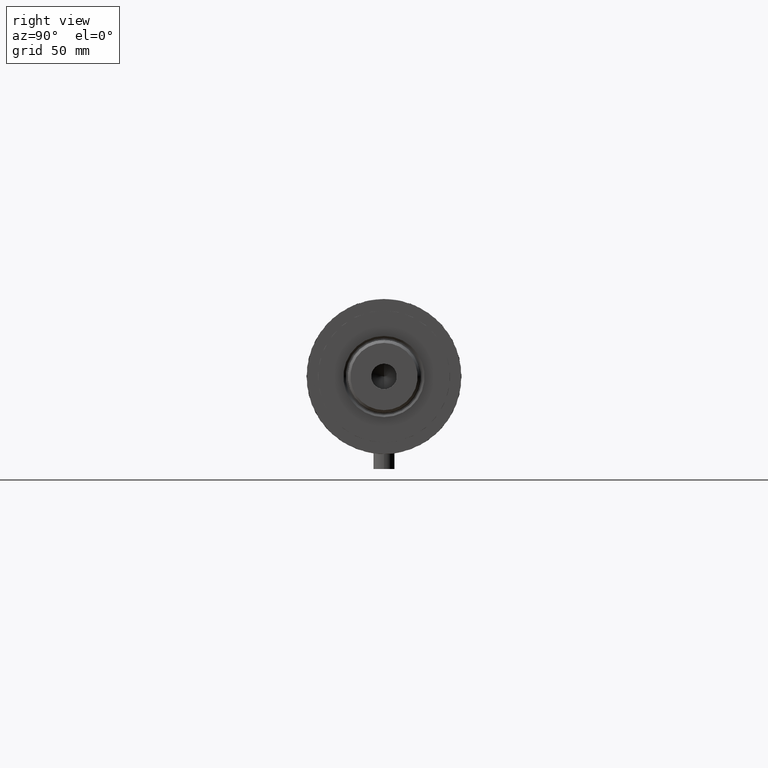
[diagram: clean part render]
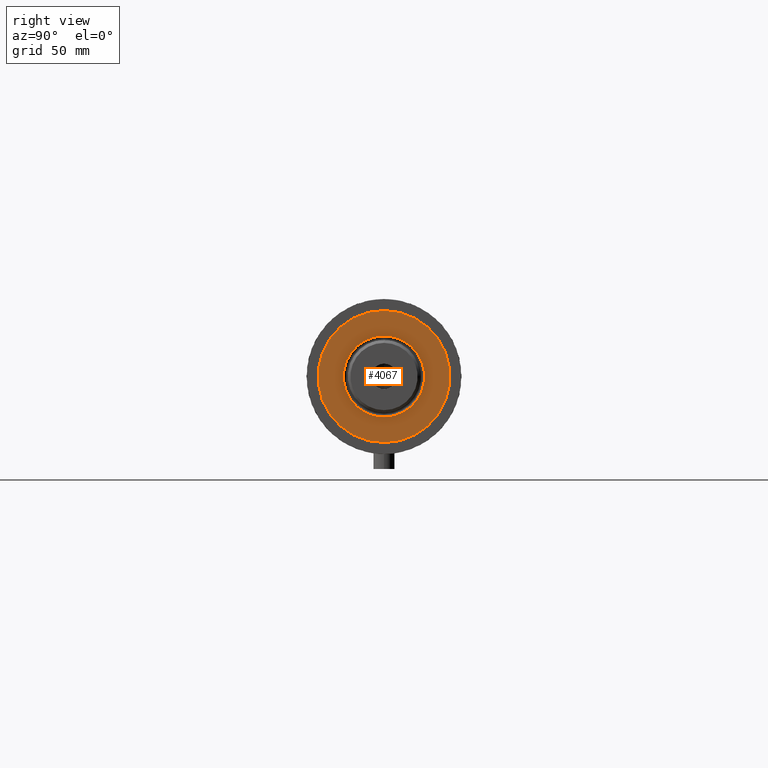
[diagram: same view with one face highlighted and labeled with its STEP entity id]
A machine part, right view. The second image highlights one B-rep face of the part: STEP entity #4067.
In plain terms, the highlighted planar face has unit normal (1, 0, -0).
Its self-contained STEP definition (entity closure, byte-faithful):
#94 = EDGE_CURVE ( 'NONE', #1922, #1827, #325, .T. ) ;
#254 = DIRECTION ( 'NONE',  ( 1.000000000000000000, 0.000000000000000000, 0.000000000000000000 ) ) ;
#325 = CIRCLE ( 'NONE', #697, 23.05000000000002913 ) ;
#491 = ORIENTED_EDGE ( 'NONE', *, *, #3106, .T. ) ;
#554 = DIRECTION ( 'NONE',  ( 0.000000000000000000, 0.000000000000000000, 1.000000000000000000 ) ) ;
#568 = DIRECTION ( 'NONE',  ( 1.000000000000000000, 0.000000000000000000, 0.000000000000000000 ) ) ;
#612 = DIRECTION ( 'NONE',  ( -0.000000000000000000, -0.000000000000000000, -1.000000000000000000 ) ) ;
#613 = CARTESIAN_POINT ( 'NONE',  ( 23.05000000000002913, 0.000000000000000000, 59.89999999999999147 ) ) ;
#697 = AXIS2_PLACEMENT_3D ( 'NONE', #1424, #3163, #3546 ) ;
#1281 = CARTESIAN_POINT ( 'NONE',  ( 0.000000000000000000, 0.000000000000000000, 59.89999999999999147 ) ) ;
#1301 = PLANE ( 'NONE',  #2478 ) ;
#1424 = CARTESIAN_POINT ( 'NONE',  ( 0.000000000000000000, 0.000000000000000000, 59.89999999999999147 ) ) ;
#1565 = CIRCLE ( 'NONE', #2481, 23.05000000000002913 ) ;
#1597 = EDGE_CURVE ( 'NONE', #2295, #3555, #3142, .T. ) ;
#1652 = CARTESIAN_POINT ( 'NONE',  ( 0.000000000000000000, 0.000000000000000000, 59.89999999999999147 ) ) ;
#1770 = AXIS2_PLACEMENT_3D ( 'NONE', #4326, #2579, #3977 ) ;
#1827 = VERTEX_POINT ( 'NONE', #4440 ) ;
#1922 = VERTEX_POINT ( 'NONE', #613 ) ;
#2009 = FACE_BOUND ( 'NONE', #3963, .T. ) ;
#2295 = VERTEX_POINT ( 'NONE', #4105 ) ;
#2305 = CARTESIAN_POINT ( 'NONE',  ( 37.50000000000000711, 4.592425496802575156E-15, 59.89999999999999147 ) ) ;
#2478 = AXIS2_PLACEMENT_3D ( 'NONE', #1281, #554, #4056 ) ;
#2481 = AXIS2_PLACEMENT_3D ( 'NONE', #3727, #612, #568 ) ;
#2559 = CIRCLE ( 'NONE', #1770, 37.50000000000000711 ) ;
#2579 = DIRECTION ( 'NONE',  ( 0.000000000000000000, 0.000000000000000000, 1.000000000000000000 ) ) ;
#2655 = FACE_OUTER_BOUND ( 'NONE', #4075, .T. ) ;
#2657 = ORIENTED_EDGE ( 'NONE', *, *, #94, .T. ) ;
#2767 = AXIS2_PLACEMENT_3D ( 'NONE', #1652, #3340, #254 ) ;
#2998 = ORIENTED_EDGE ( 'NONE', *, *, #4490, .T. ) ;
#3106 = EDGE_CURVE ( 'NONE', #3555, #2295, #2559, .T. ) ;
#3142 = CIRCLE ( 'NONE', #2767, 37.50000000000000711 ) ;
#3163 = DIRECTION ( 'NONE',  ( -0.000000000000000000, -0.000000000000000000, -1.000000000000000000 ) ) ;
#3340 = DIRECTION ( 'NONE',  ( 0.000000000000000000, 0.000000000000000000, 1.000000000000000000 ) ) ;
#3546 = DIRECTION ( 'NONE',  ( 1.000000000000000000, 0.000000000000000000, 0.000000000000000000 ) ) ;
#3555 = VERTEX_POINT ( 'NONE', #2305 ) ;
#3727 = CARTESIAN_POINT ( 'NONE',  ( 0.000000000000000000, 0.000000000000000000, 59.89999999999999147 ) ) ;
#3963 = EDGE_LOOP ( 'NONE', ( #2657, #2998 ) ) ;
#3977 = DIRECTION ( 'NONE',  ( 1.000000000000000000, 0.000000000000000000, 0.000000000000000000 ) ) ;
#4056 = DIRECTION ( 'NONE',  ( 1.000000000000000000, 0.000000000000000000, -0.000000000000000000 ) ) ;
#4067 = ADVANCED_FACE ( 'NONE', ( #2009, #2655 ), #1301, .T. ) ;
#4075 = EDGE_LOOP ( 'NONE', ( #4179, #491 ) ) ;
#4105 = CARTESIAN_POINT ( 'NONE',  ( -37.50000000000000711, 0.000000000000000000, 59.89999999999999147 ) ) ;
#4179 = ORIENTED_EDGE ( 'NONE', *, *, #1597, .T. ) ;
#4326 = CARTESIAN_POINT ( 'NONE',  ( 0.000000000000000000, 0.000000000000000000, 59.89999999999999147 ) ) ;
#4440 = CARTESIAN_POINT ( 'NONE',  ( -23.05000000000002913, 2.822810872034651791E-15, 59.89999999999999147 ) ) ;
#4490 = EDGE_CURVE ( 'NONE', #1827, #1922, #1565, .T. ) ;